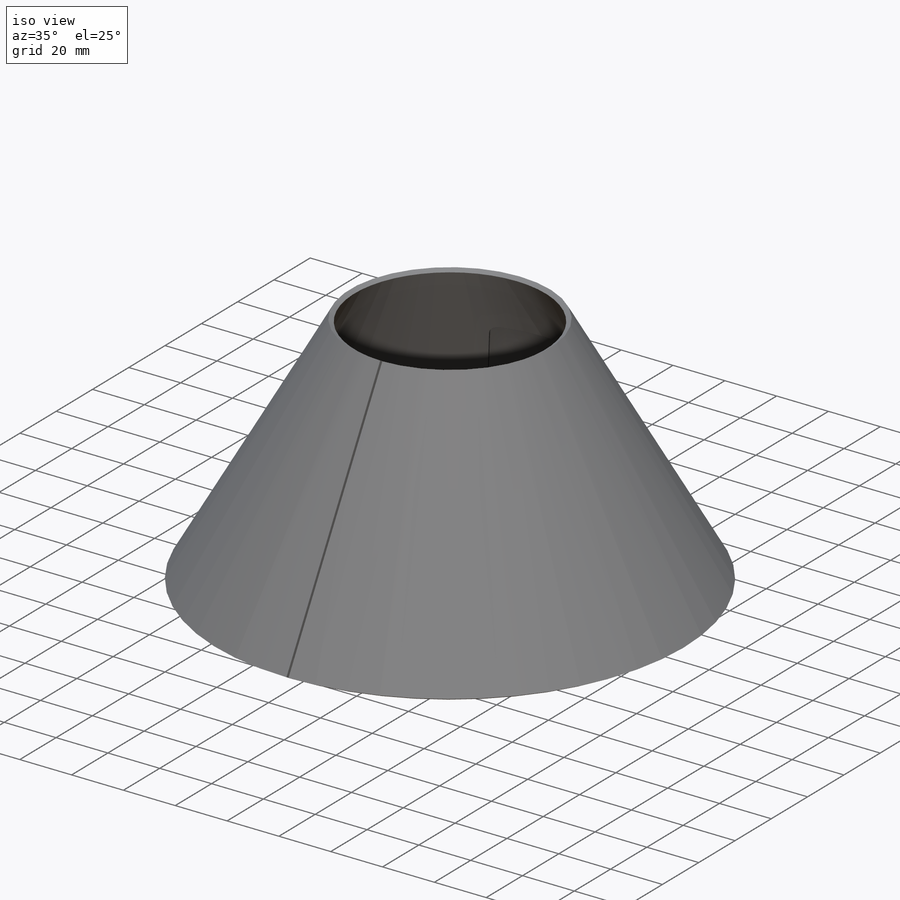
[diagram: iso view]
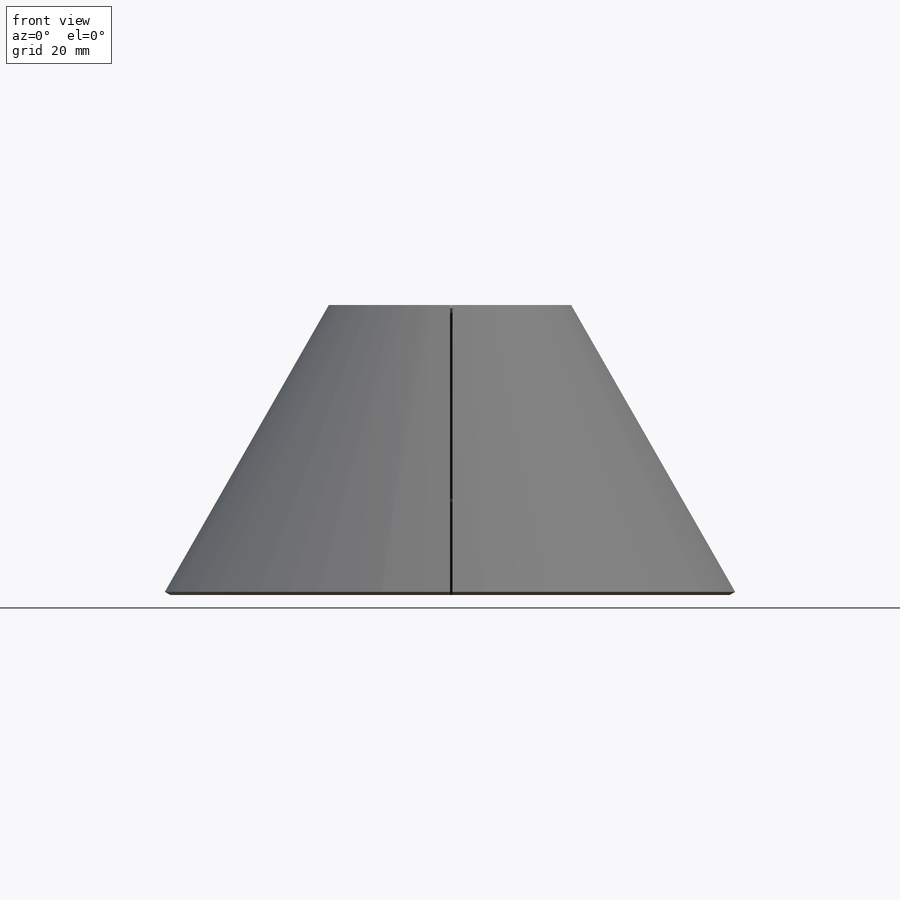
[diagram: front view]
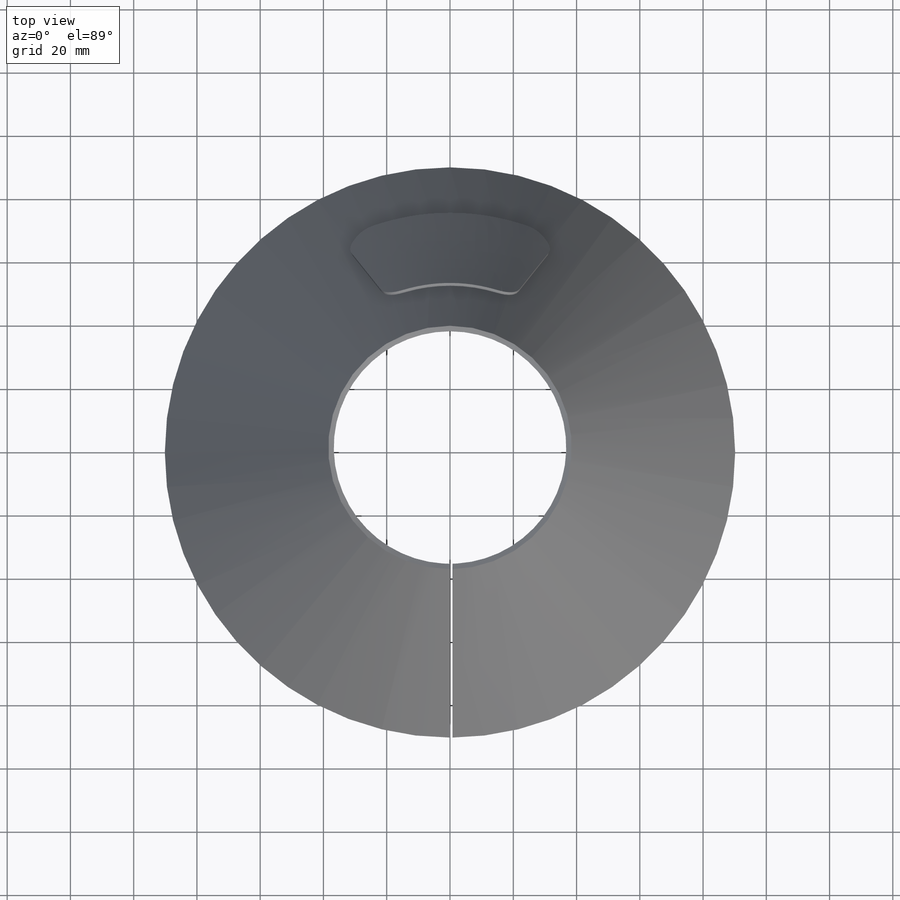
[diagram: top view]
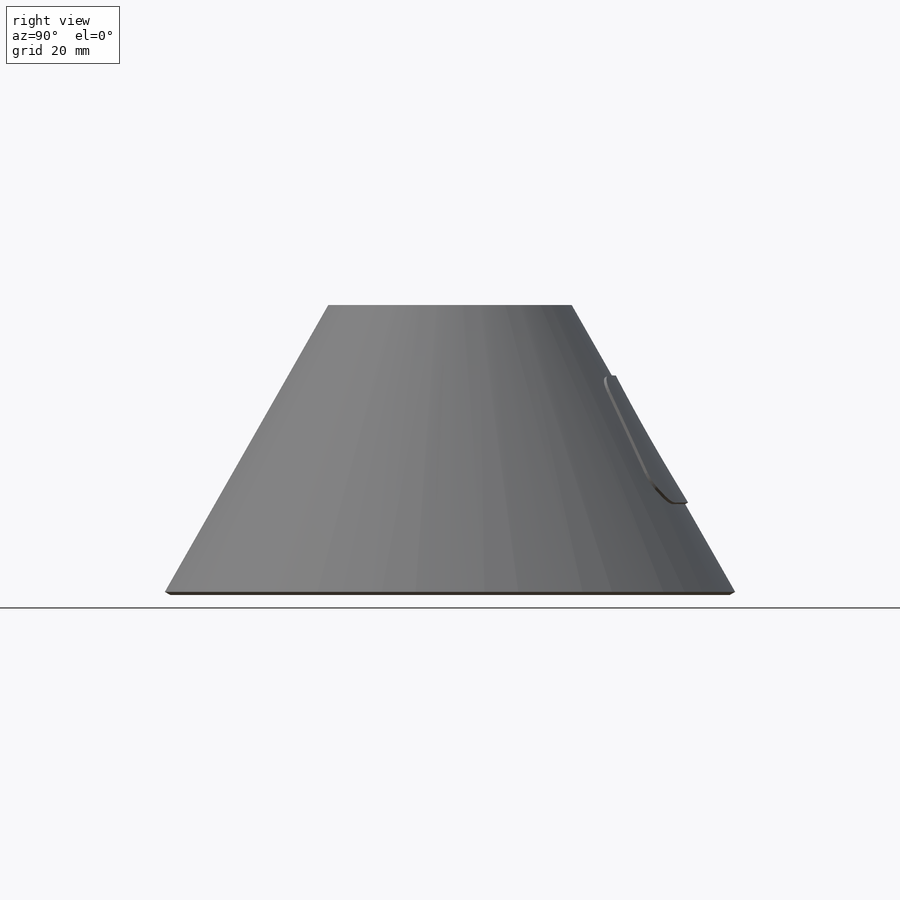
[diagram: right view]
SOLIDWORKS PART (.sldprt)
format: sldprt  version: not decoded by parser v0  size: 627,200 bytes
history: native  units: mm
features: sketch x7, plane x3, cut_extrude x2, material x1, sheet_metal_op x1 + 2 further entries (+8 scaffold rows collapsed)
feature tree (24):
  scaffold x8  (default folders/planes/origin — collapsed)
  material  "Materiał <nieokreślony>"
  plane  "Płaszczyzna przednia"
  plane  "Płaszczyzna górna"
  plane  "Płaszczyzna prawa"
  sketch  "Szkic2"  dims[D1=360.0deg D3=2.0mm D4=10.0mm]
  sketch  "Szkic3"
  cut_extrude  "Wytnij-wyciągnięcie1"  [1 undecoded]
  sheet_metal_op  "Arkusz blachy2"
  sketch  "Szkic linii zgięć2"  dims[D1=0.0mm]
  sketch  "Płaski szkic2"  dims[D1=0.0mm]
  sketch  "Szkic12"  dims[D1=5.0mm]
  cut_extrude  "Wytnij-wyciągnięcie2"  Depth=80mm Pogrub2=0
  "Rozłożony model2"
  sketch  "Linie zgięcia2"
  sketch  "Ramka-graniczna2"
  "Transformacja szkicu1"
decode coverage: 5 of 10 modeling features carry decoded parameters; 2 rows unclassified (native names shown)
note: 1 parameter value undecoded
note: suppression state not decoded; provenance and decode notes live in map.json
